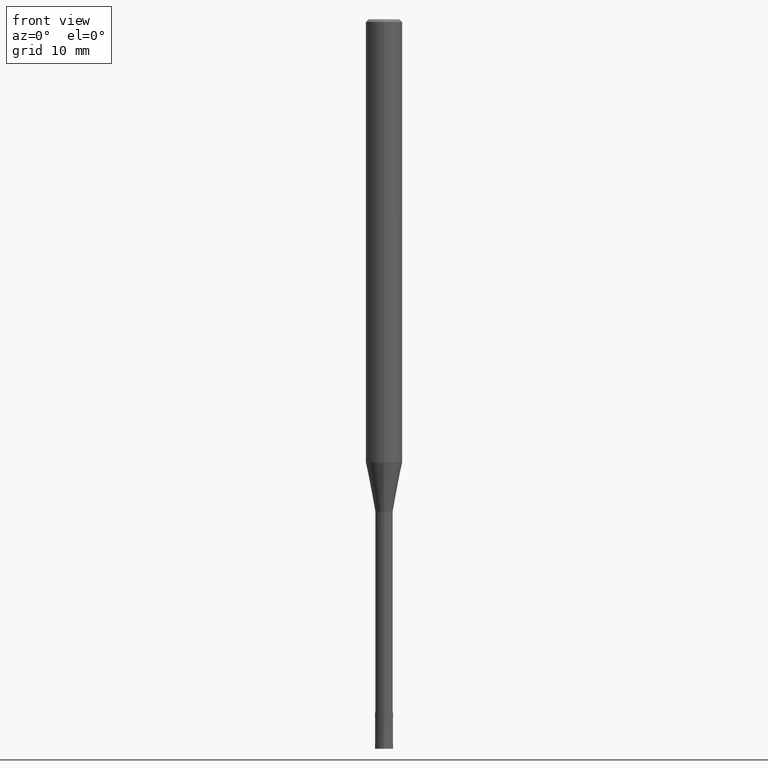
[diagram: clean part render]
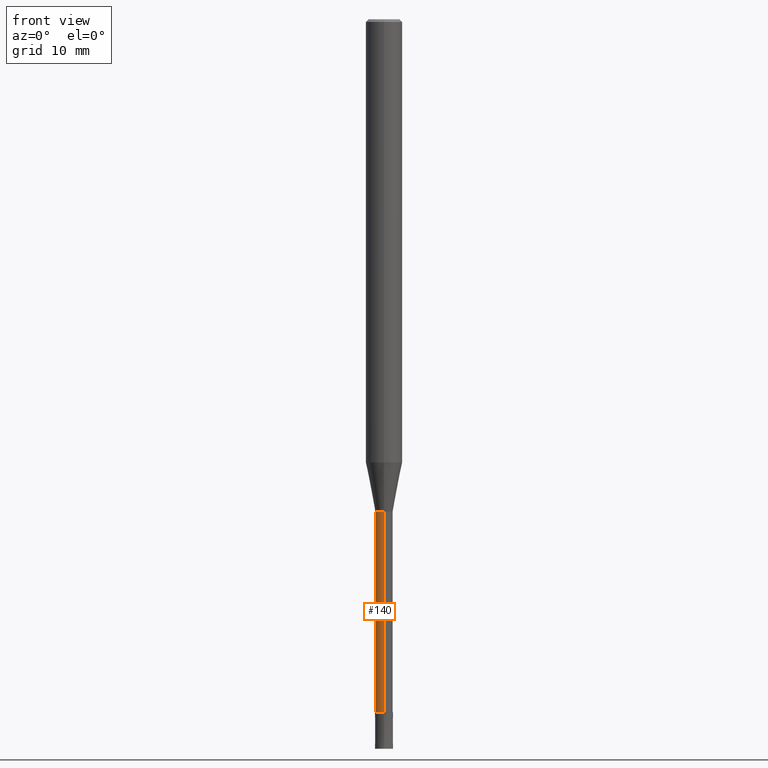
[diagram: same view with one face highlighted and labeled with its STEP entity id]
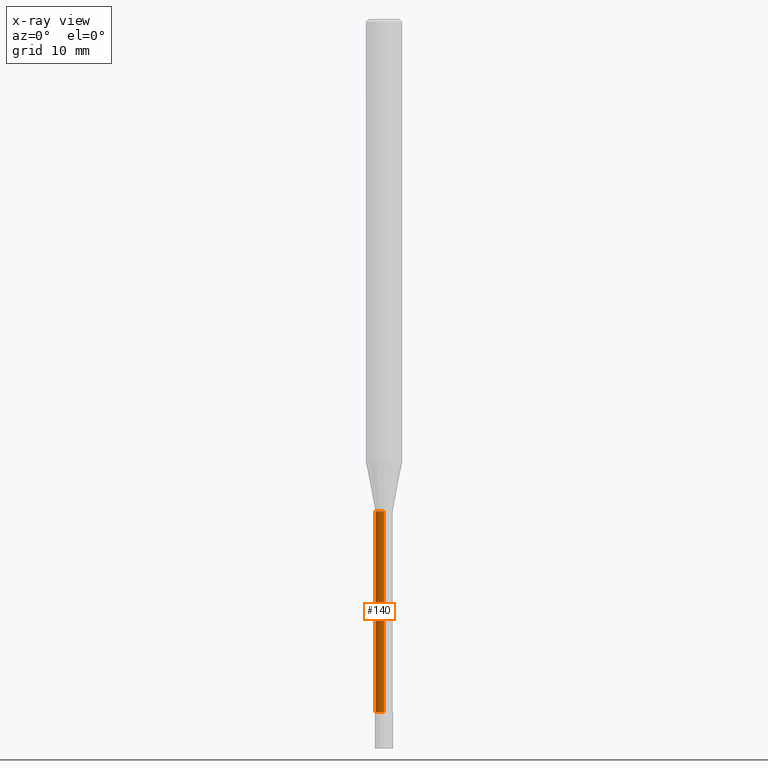
[diagram: x-ray of the same camera — body ghosted, the highlighted face saturated]
A machine part, front view. The second image highlights one B-rep face of the part: STEP entity #140.
The next image is the same camera in x-ray: the body ghosted, the highlighted face saturated — about 0% of this face is hidden behind the body in this view.
In plain terms, the highlighted cylindrical surface (edge-blend (fillet) strip) has radius 0.9499 mm, axis along (-0, -0, 1).
Its self-contained STEP definition (entity closure, byte-faithful):
#106=VERTEX_POINT('',#245);
#118=VERTEX_POINT('',#258);
#140=ADVANCED_FACE('',(#283),#284,.T.);
#152=EDGE_CURVE('',#106,#206,#298,.T.);
#164=EDGE_CURVE('',#206,#118,#311,.T.);
#186=VERTEX_POINT('',#336);
#192=EDGE_CURVE('',#106,#186,#343,.T.);
#204=EDGE_CURVE('',#118,#186,#356,.T.);
#206=VERTEX_POINT('',#358);
#245=CARTESIAN_POINT('',(1.16331480581357E-016,-0.94995,-76.0));
#258=CARTESIAN_POINT('',(0.0,0.94995,-54.0));
#283=FACE_OUTER_BOUND('',#439,.T.);
#284=CYLINDRICAL_SURFACE('',#440,0.94995);
#298=LINE('',#456,#457);
#311=CIRCLE('',#473,0.94995);
#336=CARTESIAN_POINT('',(0.0,0.94995,-76.0));
#343=CIRCLE('',#516,0.94995);
#356=LINE('',#534,#535);
#358=CARTESIAN_POINT('',(1.16331480581357E-016,-0.94995,-54.0));
#439=EDGE_LOOP('',(#606,#607,#608,#609));
#440=AXIS2_PLACEMENT_3D('',#610,#611,#612);
#456=CARTESIAN_POINT('',(1.16331480581357E-016,-0.94995,-65.0));
#457=VECTOR('',#624,1.0);
#473=AXIS2_PLACEMENT_3D('',#639,#640,#641);
#516=AXIS2_PLACEMENT_3D('',#687,#688,#689);
#534=CARTESIAN_POINT('',(-1.16331480581357E-016,0.94995,-65.0));
#535=VECTOR('',#705,1.0);
#606=ORIENTED_EDGE('',*,*,#204,.T.);
#607=ORIENTED_EDGE('',*,*,#192,.F.);
#608=ORIENTED_EDGE('',*,*,#152,.T.);
#609=ORIENTED_EDGE('',*,*,#164,.T.);
#610=CARTESIAN_POINT('',(0.0,0.0,-65.0));
#611=DIRECTION('',(-0.0,-0.0,1.0));
#612=DIRECTION('',(0.0,1.0,0.0));
#624=DIRECTION('',(-0.0,-0.0,1.0));
#639=CARTESIAN_POINT('',(0.0,0.0,-54.0));
#640=DIRECTION('',(0.0,0.0,-1.0));
#641=DIRECTION('',(0.0,1.0,0.0));
#687=CARTESIAN_POINT('',(0.0,0.0,-76.0));
#688=DIRECTION('',(0.0,0.0,-1.0));
#689=DIRECTION('',(0.0,1.0,0.0));
#705=DIRECTION('',(0.0,0.0,-1.0));